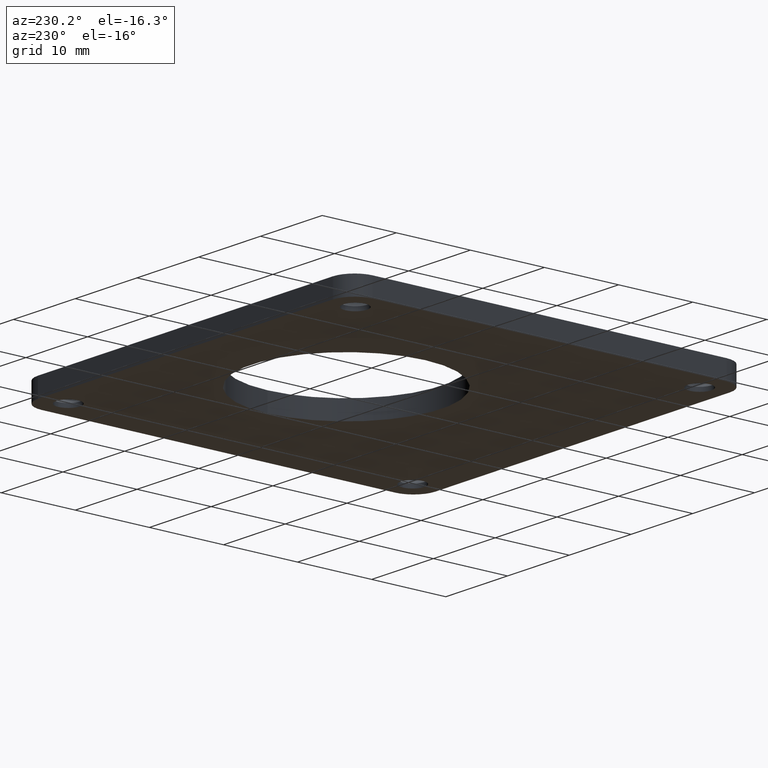
[diagram: clean part render]
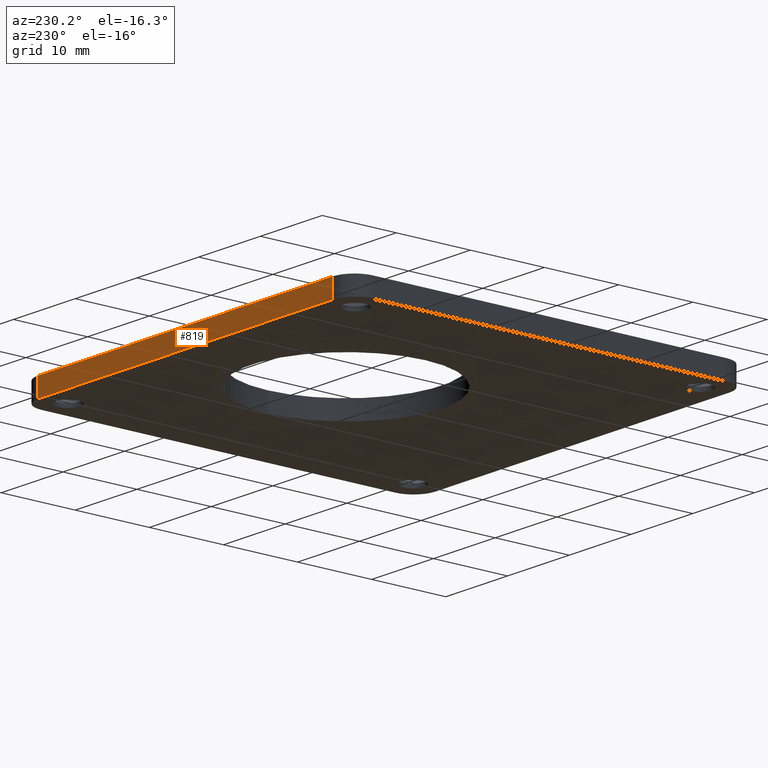
[diagram: same view with one face highlighted and labeled with its STEP entity id]
A machine part, auxiliary view. The second image highlights one B-rep face of the part: STEP entity #819.
In plain terms, the highlighted planar face has unit normal (0, -1, 0).
Its self-contained STEP definition (entity closure, byte-faithful):
#13 = CARTESIAN_POINT ( 'NONE',  ( 0.9399999999999999500, 1.055000000000000200, 0.04921259842519685300 ) ) ;
#21 = VECTOR ( 'NONE', #768, 39.37007874015748100 ) ;
#27 = CARTESIAN_POINT ( 'NONE',  ( 0.9399999999999999500, 1.055000000000000200, 0.04921259842519685300 ) ) ;
#49 = VECTOR ( 'NONE', #858, 39.37007874015748100 ) ;
#88 = ORIENTED_EDGE ( 'NONE', *, *, #914, .T. ) ;
#90 = CARTESIAN_POINT ( 'NONE',  ( -0.9399999999999999500, 1.055000000000000200, 0.04921259842519685300 ) ) ;
#91 = CARTESIAN_POINT ( 'NONE',  ( -0.9399999999999999500, 1.055000000000000200, 0.04921259842519685300 ) ) ;
#97 = CARTESIAN_POINT ( 'NONE',  ( 0.9399999999999999500, 1.055000000000000200, -0.04921259842519685300 ) ) ;
#122 = VERTEX_POINT ( 'NONE', #27 ) ;
#125 = LINE ( 'NONE', #856, #346 ) ;
#147 = LINE ( 'NONE', #562, #21 ) ;
#184 = ORIENTED_EDGE ( 'NONE', *, *, #287, .T. ) ;
#185 = VECTOR ( 'NONE', #820, 39.37007874015748100 ) ;
#210 = LINE ( 'NONE', #91, #185 ) ;
#219 = VERTEX_POINT ( 'NONE', #97 ) ;
#274 = EDGE_CURVE ( 'NONE', #122, #787, #147, .T. ) ;
#287 = EDGE_CURVE ( 'NONE', #122, #219, #744, .T. ) ;
#304 = DIRECTION ( 'NONE',  ( -1.000000000000000000, -0.0000000000000000000, -0.0000000000000000000 ) ) ;
#318 = EDGE_CURVE ( 'NONE', #787, #464, #210, .T. ) ;
#346 = VECTOR ( 'NONE', #304, 39.37007874015748100 ) ;
#456 = DIRECTION ( 'NONE',  ( 0.0000000000000000000, -1.000000000000000000, 0.0000000000000000000 ) ) ;
#464 = VERTEX_POINT ( 'NONE', #504 ) ;
#471 = ORIENTED_EDGE ( 'NONE', *, *, #274, .F. ) ;
#500 = FACE_OUTER_BOUND ( 'NONE', #537, .T. ) ;
#504 = CARTESIAN_POINT ( 'NONE',  ( -0.9399999999999999500, 1.055000000000000200, -0.04921259842519685300 ) ) ;
#537 = EDGE_LOOP ( 'NONE', ( #88, #828, #471, #184 ) ) ;
#562 = CARTESIAN_POINT ( 'NONE',  ( -0.9399999999999999500, 1.055000000000000200, 0.04921259842519685300 ) ) ;
#595 = AXIS2_PLACEMENT_3D ( 'NONE', #802, #456, #906 ) ;
#609 = PLANE ( 'NONE',  #595 ) ;
#744 = LINE ( 'NONE', #13, #49 ) ;
#768 = DIRECTION ( 'NONE',  ( -1.000000000000000000, -0.0000000000000000000, -0.0000000000000000000 ) ) ;
#787 = VERTEX_POINT ( 'NONE', #90 ) ;
#802 = CARTESIAN_POINT ( 'NONE',  ( -0.9399999999999999500, 1.055000000000000200, 0.04921259842519685300 ) ) ;
#819 = ADVANCED_FACE ( 'NONE', ( #500 ), #609, .F. ) ;
#820 = DIRECTION ( 'NONE',  ( -0.0000000000000000000, -0.0000000000000000000, -1.000000000000000000 ) ) ;
#828 = ORIENTED_EDGE ( 'NONE', *, *, #318, .F. ) ;
#856 = CARTESIAN_POINT ( 'NONE',  ( -0.9399999999999999500, 1.055000000000000200, -0.04921259842519685300 ) ) ;
#858 = DIRECTION ( 'NONE',  ( -0.0000000000000000000, -0.0000000000000000000, -1.000000000000000000 ) ) ;
#906 = DIRECTION ( 'NONE',  ( 0.0000000000000000000, -0.0000000000000000000, -1.000000000000000000 ) ) ;
#914 = EDGE_CURVE ( 'NONE', #219, #464, #125, .T. ) ;